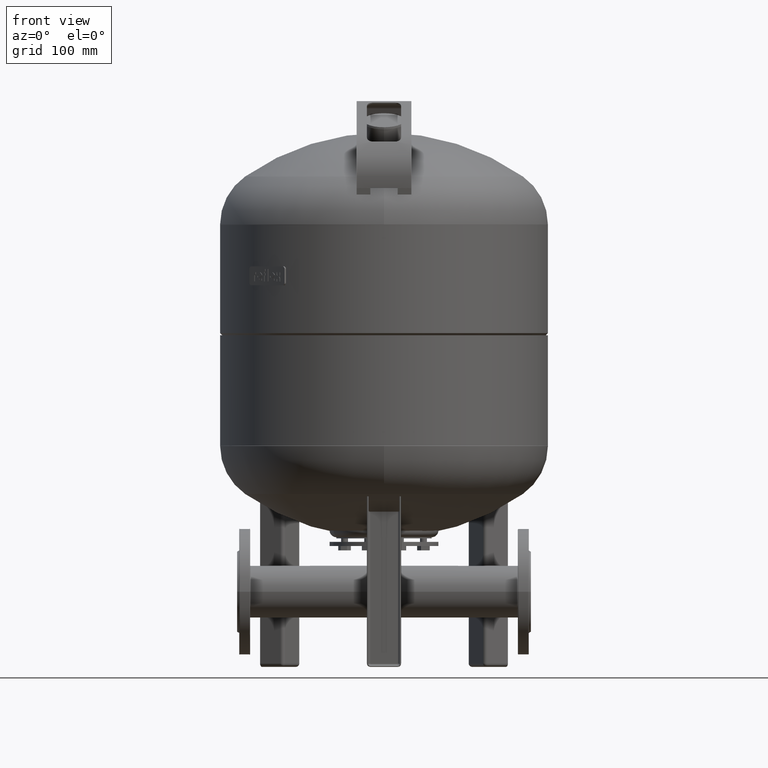
[diagram: clean part render]
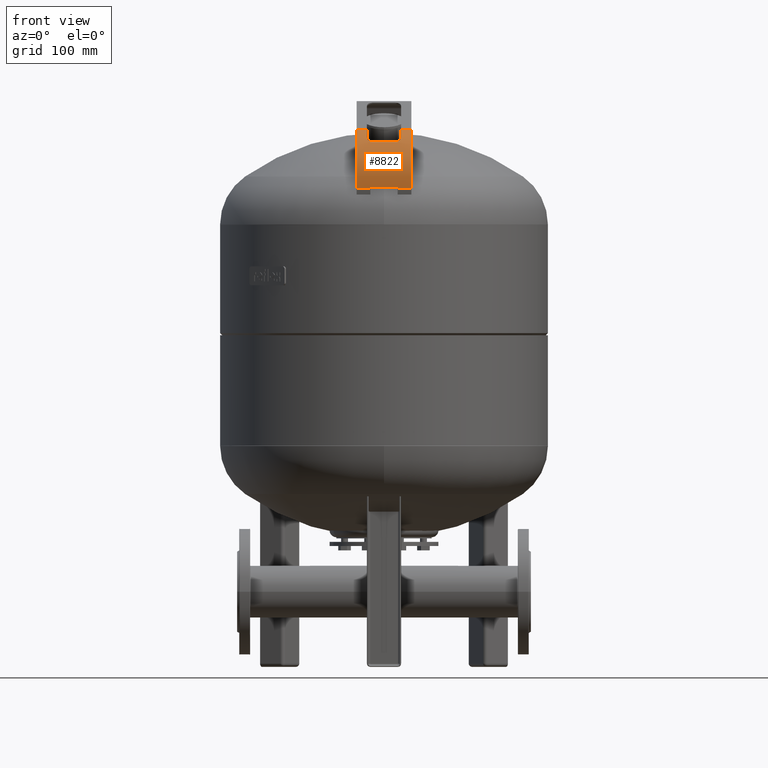
[diagram: same view with one face highlighted and labeled with its STEP entity id]
A machine part, front view. The second image highlights one B-rep face of the part: STEP entity #8822.
In plain terms, the highlighted cylindrical surface (partial cylindrical patch) has radius 79 mm, axis along (1, -0, -0).
Its self-contained STEP definition (entity closure, byte-faithful):
#8130=CARTESIAN_POINT('',(19.999999999999950,-230.314956429002510,701.249359975729590));
#8131=VERTEX_POINT('',#8130);
#8138=CARTESIAN_POINT('',(-20.000000000000046,-230.314956429002510,701.249359975729590));
#8139=VERTEX_POINT('',#8138);
#8140=CARTESIAN_POINT('',(-20.000000000000046,-230.314956429002510,701.249359975729590));
#8141=DIRECTION('',(1.0,0.0,0.0));
#8142=VECTOR('',#8141,40.0);
#8143=LINE('',#8140,#8142);
#8144=EDGE_CURVE('',#8139,#8131,#8143,.T.);
#8350=CARTESIAN_POINT('',(-25.000000000000007,-207.472408261487490,774.979192514444430));
#8351=VERTEX_POINT('',#8350);
#8358=CARTESIAN_POINT('',(-17.000000000000036,-213.057498292336530,769.096769554108730));
#8359=VERTEX_POINT('',#8358);
#8360=CARTESIAN_POINT('',(-17.000000000000036,-213.057498292336450,769.096769554108730));
#8361=CARTESIAN_POINT('',(-18.001098037693428,-213.057533406364340,769.096728545297420));
#8362=CARTESIAN_POINT('',(-18.994389289908078,-212.933977990060780,769.242020480752560));
#8363=CARTESIAN_POINT('',(-20.846478049911731,-212.449498082455480,769.799739337249550));
#8364=CARTESIAN_POINT('',(-21.688261161398458,-212.096949137306810,770.202129829453610));
#8365=CARTESIAN_POINT('',(-23.154927435061772,-211.180275869910670,771.215807010979920));
#8366=CARTESIAN_POINT('',(-23.760069219120307,-210.618956021871210,771.822679323830810));
#8367=CARTESIAN_POINT('',(-24.462487950084562,-209.600431946808810,772.881480335047630));
#8368=CARTESIAN_POINT('',(-24.663795012076246,-209.193420257121430,773.296112169762520));
#8369=CARTESIAN_POINT('',(-24.932595877861122,-208.348333116119620,774.136925628619570));
#8370=CARTESIAN_POINT('',(-25.000029814050304,-207.913196104270440,774.560278983362420));
#8371=CARTESIAN_POINT('',(-25.000000000000007,-207.472408261487490,774.979192514444430));
#8372=B_SPLINE_CURVE_WITH_KNOTS('',3,(#8360,#8361,#8362,#8363,#8364,#8365,#8366,#8367,#8368,#8369,#8370,#8371),.UNSPECIFIED.,.F.,.U.,(4,2,2,2,2,4),(0.0,0.300329411744744,0.596044484812661,0.899555431535718,1.082712991981320,1.264749568333981),.UNSPECIFIED.);
#8373=EDGE_CURVE('',#8359,#8351,#8372,.T.);
#8398=CARTESIAN_POINT('',(16.999999999999957,-213.057498292336450,769.096769554108730));
#8399=VERTEX_POINT('',#8398);
#8400=CARTESIAN_POINT('',(16.999999999999957,-213.057498292336450,769.096769554108730));
#8401=DIRECTION('',(-1.0,0.0,0.0));
#8402=VECTOR('',#8401,33.999999999999993);
#8403=LINE('',#8400,#8402);
#8404=EDGE_CURVE('',#8399,#8359,#8403,.T.);
#8609=CARTESIAN_POINT('',(24.999999999999964,-207.472408261487490,774.979192514444430));
#8610=VERTEX_POINT('',#8609);
#8611=CARTESIAN_POINT('',(24.999999999999922,-207.472408261487490,774.979192514444430));
#8612=CARTESIAN_POINT('',(25.000052143342899,-208.243325042544090,774.246532854677300));
#8613=CARTESIAN_POINT('',(24.793327339327650,-208.994514968431450,773.501832381226220));
#8614=CARTESIAN_POINT('',(23.980301755713171,-210.381582949493890,772.075662546357530));
#8615=CARTESIAN_POINT('',(23.375306670411828,-211.003156183258110,771.408601283054510));
#8616=CARTESIAN_POINT('',(21.900263560729488,-211.992338539046390,770.319993648011520));
#8617=CARTESIAN_POINT('',(21.067202024343082,-212.367320565451790,769.893543037172090));
#8618=CARTESIAN_POINT('',(19.662136493641501,-212.768285450692500,769.433057620865160));
#8619=CARTESIAN_POINT('',(19.154013798091633,-212.874353787970050,769.310008719779830));
#8620=CARTESIAN_POINT('',(18.095566499509555,-213.020366726913010,769.140228775071930));
#8621=CARTESIAN_POINT('',(17.548063254248063,-213.057517515936720,769.096747103337860));
#8622=CARTESIAN_POINT('',(16.999999999999957,-213.057498292336450,769.096769554108730));
#8623=B_SPLINE_CURVE_WITH_KNOTS('',3,(#8611,#8612,#8613,#8614,#8615,#8616,#8617,#8618,#8619,#8620,#8621,#8622),.UNSPECIFIED.,.F.,.U.,(4,2,2,2,2,4),(0.0,0.319059959376750,0.643429384093297,0.942865666803827,1.102285567286538,1.266952028297452),.UNSPECIFIED.);
#8624=EDGE_CURVE('',#8610,#8399,#8623,.T.);
#8729=CARTESIAN_POINT('',(-3.131184E-014,-153.049929203743350,717.714947359117220));
#8730=DIRECTION('',(1.0,-2.041297E-016,-1.193991E-017));
#8731=DIRECTION('',(-9.268022E-017,-0.504527623815021,0.863395550606771));
#8732=AXIS2_PLACEMENT_3D('',#8729,#8730,#8731);
#8733=CYLINDRICAL_SURFACE('',#8732,79.000000000000014);
#8734=CARTESIAN_POINT('',(24.999999999999961,-192.907611485130050,785.923195857052060));
#8735=VERTEX_POINT('',#8734);
#8736=CARTESIAN_POINT('',(24.999999999999968,-153.049929203743350,717.714947359117220));
#8737=DIRECTION('',(1.0,-4.675973E-017,8.001969E-017));
#8738=DIRECTION('',(-9.268022E-017,-0.504527623815021,0.863395550606771));
#8739=AXIS2_PLACEMENT_3D('',#8736,#8737,#8738);
#8740=CIRCLE('',#8739,79.000000000000014);
#8741=EDGE_CURVE('',#8735,#8610,#8740,.T.);
#8742=ORIENTED_EDGE('',*,*,#8741,.T.);
#8743=ORIENTED_EDGE('',*,*,#8624,.T.);
#8744=ORIENTED_EDGE('',*,*,#8404,.T.);
#8745=ORIENTED_EDGE('',*,*,#8373,.T.);
#8746=CARTESIAN_POINT('',(-25.000000000000039,-192.907611485130050,785.923195857052060));
#8747=VERTEX_POINT('',#8746);
#8748=CARTESIAN_POINT('',(-25.000000000000032,-153.049929203743350,717.714947359117220));
#8749=DIRECTION('',(-1.0,4.675973E-017,-8.001969E-017));
#8750=DIRECTION('',(-9.268022E-017,-0.504527623815021,0.863395550606771));
#8751=AXIS2_PLACEMENT_3D('',#8748,#8749,#8750);
#8752=CIRCLE('',#8751,79.000000000000014);
#8753=EDGE_CURVE('',#8351,#8747,#8752,.T.);
#8754=ORIENTED_EDGE('',*,*,#8753,.T.);
#8755=CARTESIAN_POINT('',(-40.000000000000036,-192.907611485130050,785.923195857052060));
#8756=VERTEX_POINT('',#8755);
#8757=CARTESIAN_POINT('',(-40.000000000000036,-192.907611485130050,785.923195857052060));
#8758=DIRECTION('',(1.0,0.0,0.0));
#8759=VECTOR('',#8758,14.999999999999996);
#8760=LINE('',#8757,#8759);
#8761=EDGE_CURVE('',#8756,#8747,#8760,.T.);
#8762=ORIENTED_EDGE('',*,*,#8761,.F.);
#8763=CARTESIAN_POINT('',(-40.000000000000050,-230.236529584129270,700.885546843393850));
#8764=VERTEX_POINT('',#8763);
#8765=CARTESIAN_POINT('',(-40.000000000000028,-153.049929203743350,717.714947359117220));
#8766=DIRECTION('',(1.0,-4.675973E-017,8.001969E-017));
#8767=DIRECTION('',(-9.268022E-017,-0.504527623815021,0.863395550606771));
#8768=AXIS2_PLACEMENT_3D('',#8765,#8766,#8767);
#8769=CIRCLE('',#8768,79.000000000000014);
#8770=EDGE_CURVE('',#8756,#8764,#8769,.T.);
#8771=ORIENTED_EDGE('',*,*,#8770,.T.);
#8772=CARTESIAN_POINT('',(-20.000000000000046,-230.236529584129270,700.885546843393850));
#8773=VERTEX_POINT('',#8772);
#8774=CARTESIAN_POINT('',(-20.000000000000046,-230.236529584129270,700.885546843393850));
#8775=DIRECTION('',(-1.0,0.0,0.0));
#8776=VECTOR('',#8775,20.000000000000004);
#8777=LINE('',#8774,#8776);
#8778=EDGE_CURVE('',#8773,#8764,#8777,.T.);
#8779=ORIENTED_EDGE('',*,*,#8778,.F.);
#8780=CARTESIAN_POINT('',(-20.000000000000032,-153.049929203743350,717.714947359117220));
#8781=DIRECTION('',(-1.0,4.675973E-017,-8.001969E-017));
#8782=DIRECTION('',(-9.268022E-017,-0.504527623815021,0.863395550606771));
#8783=AXIS2_PLACEMENT_3D('',#8780,#8781,#8782);
#8784=CIRCLE('',#8783,79.000000000000014);
#8785=EDGE_CURVE('',#8773,#8139,#8784,.T.);
#8786=ORIENTED_EDGE('',*,*,#8785,.T.);
#8787=ORIENTED_EDGE('',*,*,#8144,.T.);
#8788=CARTESIAN_POINT('',(19.999999999999950,-230.236529584129270,700.885546843393850));
#8789=VERTEX_POINT('',#8788);
#8790=CARTESIAN_POINT('',(19.999999999999975,-153.049929203743350,717.714947359117220));
#8791=DIRECTION('',(1.0,-4.675973E-017,8.001969E-017));
#8792=DIRECTION('',(-9.268022E-017,-0.504527623815021,0.863395550606771));
#8793=AXIS2_PLACEMENT_3D('',#8790,#8791,#8792);
#8794=CIRCLE('',#8793,79.000000000000014);
#8795=EDGE_CURVE('',#8131,#8789,#8794,.T.);
#8796=ORIENTED_EDGE('',*,*,#8795,.T.);
#8797=CARTESIAN_POINT('',(39.999999999999950,-230.236529584129270,700.885546843393850));
#8798=VERTEX_POINT('',#8797);
#8799=CARTESIAN_POINT('',(39.999999999999950,-230.236529584129270,700.885546843393850));
#8800=DIRECTION('',(-1.0,0.0,0.0));
#8801=VECTOR('',#8800,20.0);
#8802=LINE('',#8799,#8801);
#8803=EDGE_CURVE('',#8798,#8789,#8802,.T.);
#8804=ORIENTED_EDGE('',*,*,#8803,.F.);
#8805=CARTESIAN_POINT('',(39.999999999999957,-192.907611485130050,785.923195857052060));
#8806=VERTEX_POINT('',#8805);
#8807=CARTESIAN_POINT('',(39.999999999999957,-153.049929203743350,717.714947359117220));
#8808=DIRECTION('',(-1.0,4.675973E-017,-8.001969E-017));
#8809=DIRECTION('',(-9.268022E-017,-0.504527623815021,0.863395550606771));
#8810=AXIS2_PLACEMENT_3D('',#8807,#8808,#8809);
#8811=CIRCLE('',#8810,79.000000000000014);
#8812=EDGE_CURVE('',#8798,#8806,#8811,.T.);
#8813=ORIENTED_EDGE('',*,*,#8812,.T.);
#8814=CARTESIAN_POINT('',(24.999999999999961,-192.907611485130050,785.923195857052060));
#8815=DIRECTION('',(1.0,0.0,0.0));
#8816=VECTOR('',#8815,14.999999999999996);
#8817=LINE('',#8814,#8816);
#8818=EDGE_CURVE('',#8735,#8806,#8817,.T.);
#8819=ORIENTED_EDGE('',*,*,#8818,.F.);
#8820=EDGE_LOOP('',(#8742,#8743,#8744,#8745,#8754,#8762,#8771,#8779,#8786,#8787,#8796,#8804,#8813,#8819));
#8821=FACE_OUTER_BOUND('',#8820,.T.);
#8822=ADVANCED_FACE('',(#8821),#8733,.T.);